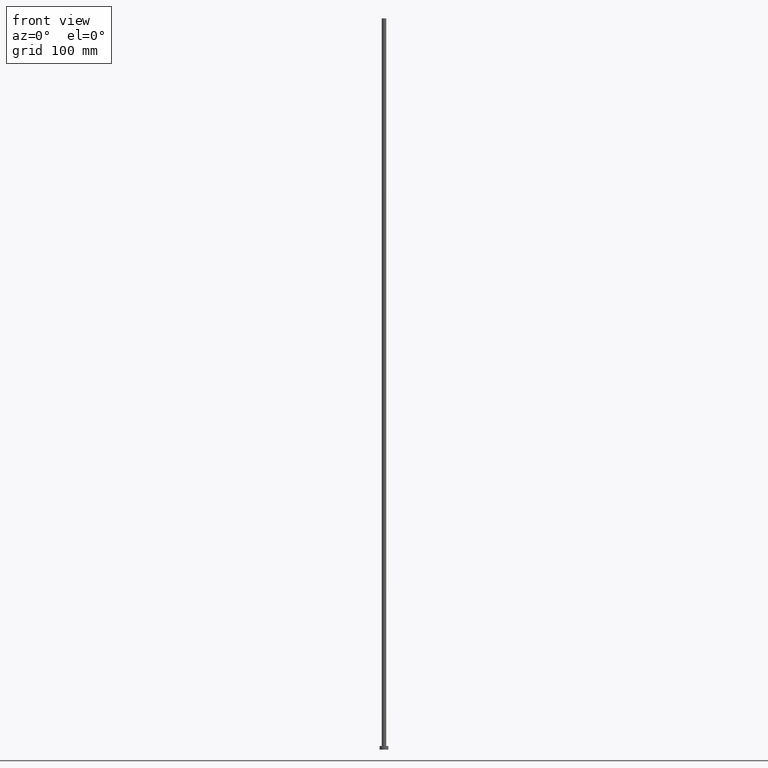
[diagram: clean part render]
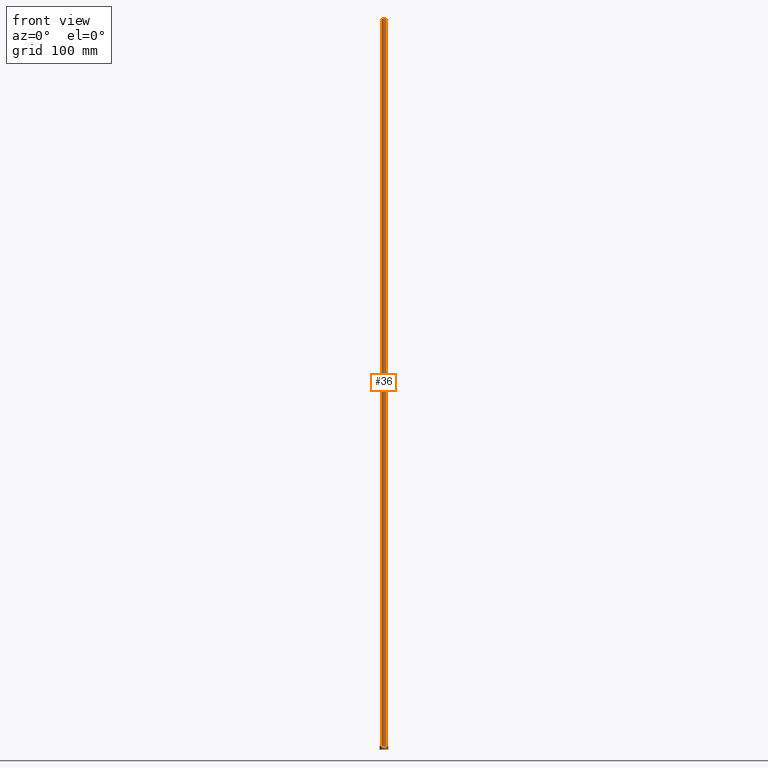
[diagram: same view with one face highlighted and labeled with its STEP entity id]
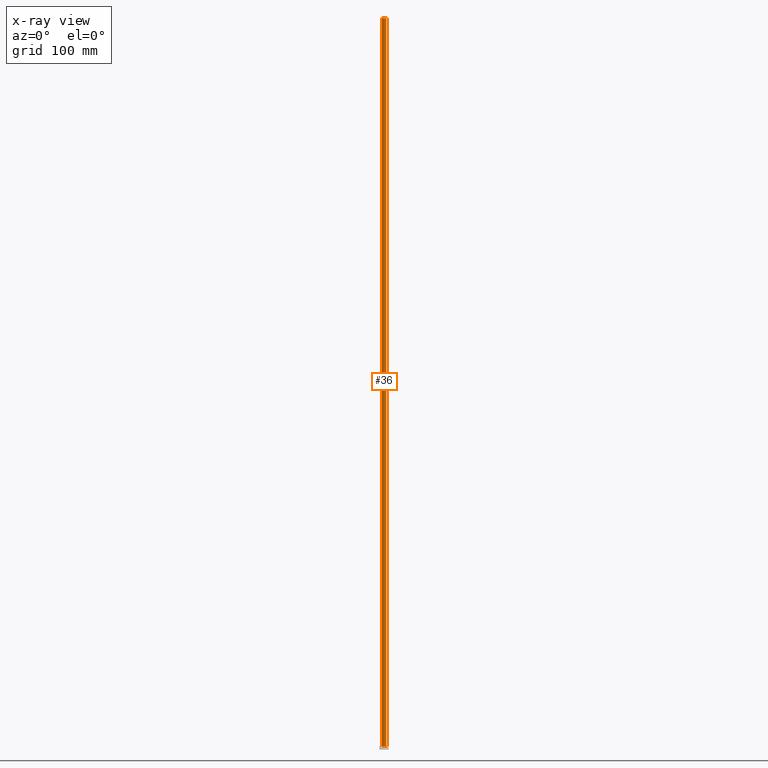
[diagram: x-ray of the same camera — body ghosted, the highlighted face saturated]
A machine part, front view. The second image highlights one B-rep face of the part: STEP entity #36.
The next image is the same camera in x-ray: the body ghosted, the highlighted face saturated — about 0% of this face is hidden behind the body in this view.
In plain terms, the highlighted cylindrical surface (edge-blend (fillet) strip) has radius 3.1 mm, axis along (-0, -0, -1).
Its self-contained STEP definition (entity closure, byte-faithful):
#3 = EDGE_CURVE ( 'NONE', #208, #10, #28, .T. ) ;
#6 = CARTESIAN_POINT ( 'NONE',  ( 3.100000000000000089, 3.796405077356793932E-16, 1000.000000000000000 ) ) ;
#8 = ORIENTED_EDGE ( 'NONE', *, *, #68, .F. ) ;
#10 = VERTEX_POINT ( 'NONE', #115 ) ;
#24 = CIRCLE ( 'NONE', #140, 3.100000000000000089 ) ;
#27 = CARTESIAN_POINT ( 'NONE',  ( -3.100000000000000089, 0.000000000000000000, 1000.000000000000000 ) ) ;
#28 = CIRCLE ( 'NONE', #83, 3.100000000000000089 ) ;
#32 = DIRECTION ( 'NONE',  ( 0.000000000000000000, 0.000000000000000000, 1.000000000000000000 ) ) ;
#36 = ADVANCED_FACE ( 'NONE', ( #61 ), #150, .T. ) ;
#39 = EDGE_LOOP ( 'NONE', ( #8, #75, #144, #212 ) ) ;
#51 = VECTOR ( 'NONE', #181, 1000.000000000000000 ) ;
#61 = FACE_OUTER_BOUND ( 'NONE', #39, .T. ) ;
#68 = EDGE_CURVE ( 'NONE', #167, #10, #233, .T. ) ;
#75 = ORIENTED_EDGE ( 'NONE', *, *, #159, .F. ) ;
#76 = VECTOR ( 'NONE', #239, 1000.000000000000000 ) ;
#83 = AXIS2_PLACEMENT_3D ( 'NONE', #178, #32, #250 ) ;
#84 = VERTEX_POINT ( 'NONE', #27 ) ;
#87 = EDGE_CURVE ( 'NONE', #84, #208, #154, .T. ) ;
#97 = CARTESIAN_POINT ( 'NONE',  ( 0.000000000000000000, 0.000000000000000000, 1000.000000000000000 ) ) ;
#115 = CARTESIAN_POINT ( 'NONE',  ( 3.100000000000000089, 3.796405077356793932E-16, 5.000000000000000000 ) ) ;
#126 = DIRECTION ( 'NONE',  ( 1.000000000000000000, 0.000000000000000000, 0.000000000000000000 ) ) ;
#140 = AXIS2_PLACEMENT_3D ( 'NONE', #183, #148, #126 ) ;
#144 = ORIENTED_EDGE ( 'NONE', *, *, #87, .T. ) ;
#148 = DIRECTION ( 'NONE',  ( 0.000000000000000000, 0.000000000000000000, 1.000000000000000000 ) ) ;
#150 = CYLINDRICAL_SURFACE ( 'NONE', #201, 3.100000000000000089 ) ;
#153 = DIRECTION ( 'NONE',  ( -0.000000000000000000, -0.000000000000000000, -1.000000000000000000 ) ) ;
#154 = LINE ( 'NONE', #219, #76 ) ;
#159 = EDGE_CURVE ( 'NONE', #84, #167, #24, .T. ) ;
#167 = VERTEX_POINT ( 'NONE', #6 ) ;
#178 = CARTESIAN_POINT ( 'NONE',  ( 0.000000000000000000, 0.000000000000000000, 5.000000000000000000 ) ) ;
#181 = DIRECTION ( 'NONE',  ( -0.000000000000000000, -0.000000000000000000, -1.000000000000000000 ) ) ;
#183 = CARTESIAN_POINT ( 'NONE',  ( 0.000000000000000000, 0.000000000000000000, 1000.000000000000000 ) ) ;
#201 = AXIS2_PLACEMENT_3D ( 'NONE', #97, #153, #238 ) ;
#208 = VERTEX_POINT ( 'NONE', #209 ) ;
#209 = CARTESIAN_POINT ( 'NONE',  ( -3.100000000000000089, 0.000000000000000000, 5.000000000000000000 ) ) ;
#212 = ORIENTED_EDGE ( 'NONE', *, *, #3, .T. ) ;
#218 = CARTESIAN_POINT ( 'NONE',  ( 3.100000000000000089, 3.796405077356793932E-16, 1000.000000000000000 ) ) ;
#219 = CARTESIAN_POINT ( 'NONE',  ( -3.100000000000000089, 0.000000000000000000, 1000.000000000000000 ) ) ;
#233 = LINE ( 'NONE', #218, #51 ) ;
#238 = DIRECTION ( 'NONE',  ( -1.000000000000000000, 0.000000000000000000, 0.000000000000000000 ) ) ;
#239 = DIRECTION ( 'NONE',  ( -0.000000000000000000, -0.000000000000000000, -1.000000000000000000 ) ) ;
#250 = DIRECTION ( 'NONE',  ( 1.000000000000000000, 0.000000000000000000, 0.000000000000000000 ) ) ;